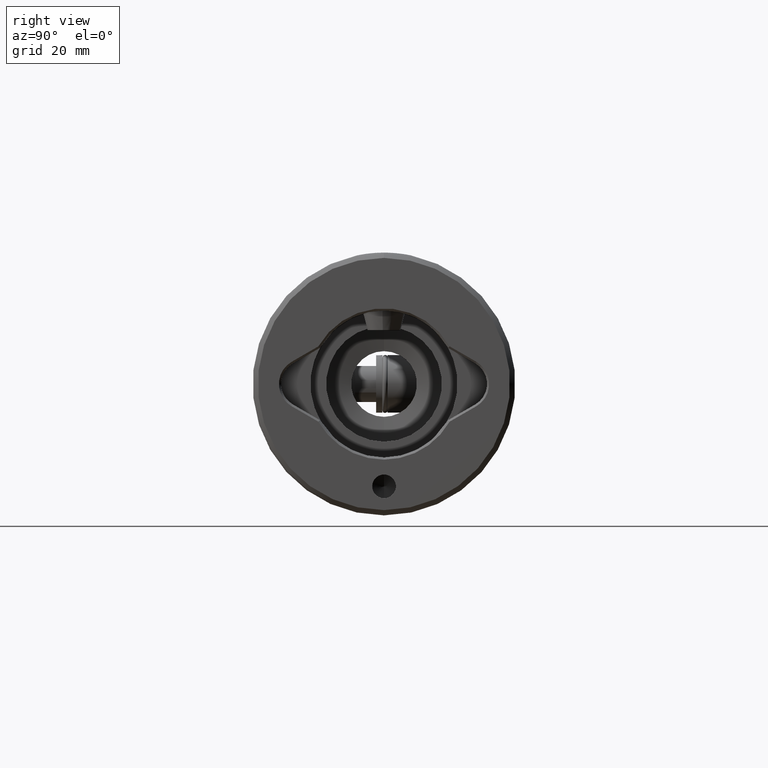
[diagram: clean part render]
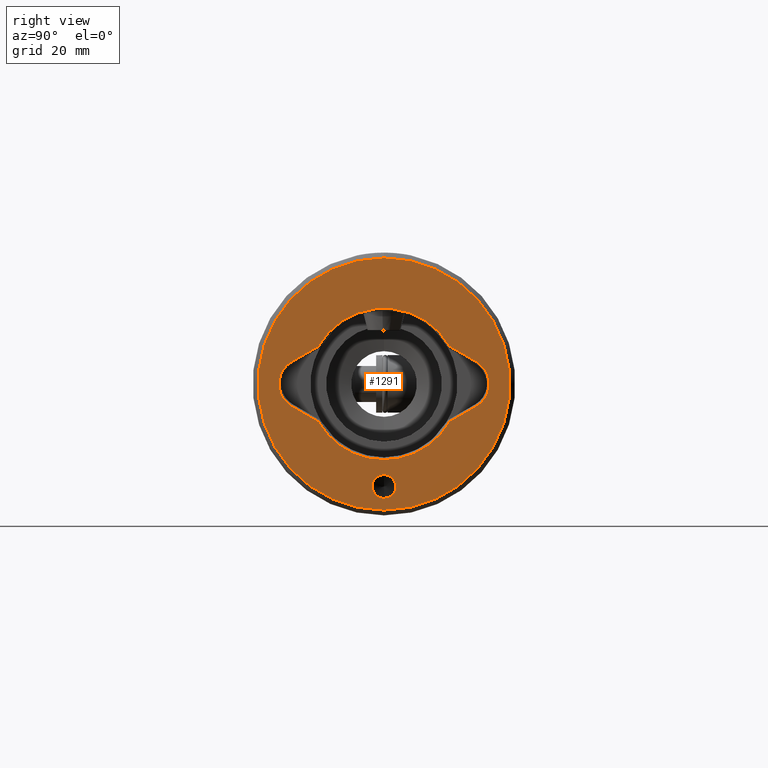
[diagram: same view with one face highlighted and labeled with its STEP entity id]
A machine part, right view. The second image highlights one B-rep face of the part: STEP entity #1291.
In plain terms, the highlighted planar face has unit normal (-1, 0, 0).
Its self-contained STEP definition (entity closure, byte-faithful):
#21 = DIRECTION ( 'NONE',  ( 0.0000000000000000000, 0.0000000000000000000, 1.000000000000000000 ) ) ;
#47 = DIRECTION ( 'NONE',  ( 0.0000000000000000000, 0.0000000000000000000, 1.000000000000000000 ) ) ;
#84 = DIRECTION ( 'NONE',  ( 0.0000000000000000000, 0.0000000000000000000, 1.000000000000000000 ) ) ;
#108 = DIRECTION ( 'NONE',  ( -0.5000000000000004400, 0.8660254037844383700, 0.0000000000000000000 ) ) ;
#204 = DIRECTION ( 'NONE',  ( -1.000000000000000000, 0.0000000000000000000, 0.0000000000000000000 ) ) ;
#256 = VERTEX_POINT ( 'NONE', #823 ) ;
#324 = EDGE_CURVE ( 'NONE', #719, #4816, #4745, .T. ) ;
#333 = DIRECTION ( 'NONE',  ( 0.0000000000000000000, 0.0000000000000000000, -1.000000000000000000 ) ) ;
#337 = DIRECTION ( 'NONE',  ( 1.000000000000000000, 0.0000000000000000000, 0.0000000000000000000 ) ) ;
#340 = DIRECTION ( 'NONE',  ( 1.000000000000000000, 0.0000000000000000000, 0.0000000000000000000 ) ) ;
#350 = CARTESIAN_POINT ( 'NONE',  ( -1.910449006669866200E-015, -15.10000000000000000, 0.0000000000000000000 ) ) ;
#457 = ORIENTED_EDGE ( 'NONE', *, *, #3512, .T. ) ;
#490 = VERTEX_POINT ( 'NONE', #1685 ) ;
#553 = CARTESIAN_POINT ( 'NONE',  ( 7.164092148558562000, -12.49142840859129100, 0.0000000000000000000 ) ) ;
#637 = AXIS2_PLACEMENT_3D ( 'NONE', #4191, #21, #2728 ) ;
#668 = CARTESIAN_POINT ( 'NONE',  ( 0.0000000000000000000, 0.0000000000000000000, 0.0000000000000000000 ) ) ;
#719 = VERTEX_POINT ( 'NONE', #4498 ) ;
#751 = CARTESIAN_POINT ( 'NONE',  ( 0.0000000000000000000, 0.0000000000000000000, 0.0000000000000000000 ) ) ;
#803 = EDGE_LOOP ( 'NONE', ( #457, #841, #1763, #4679, #2871, #2015, #2663, #4658, #2180 ) ) ;
#808 = DIRECTION ( 'NONE',  ( 1.000000000000000000, 0.0000000000000000000, 0.0000000000000000000 ) ) ;
#823 = CARTESIAN_POINT ( 'NONE',  ( -7.164092148558573600, 12.49142840859128600, 0.0000000000000000000 ) ) ;
#838 = CARTESIAN_POINT ( 'NONE',  ( -10.78201627711627200, -6.225000000000017400, 0.0000000000000000000 ) ) ;
#841 = ORIENTED_EDGE ( 'NONE', *, *, #4812, .T. ) ;
#927 = EDGE_CURVE ( 'NONE', #256, #1610, #4797, .T. ) ;
#973 = CIRCLE ( 'NONE', #1817, 23.99999999999997900 ) ;
#1055 = VERTEX_POINT ( 'NONE', #2867 ) ;
#1134 = CARTESIAN_POINT ( 'NONE',  ( 0.0000000000000000000, 0.0000000000000000000, 0.0000000000000000000 ) ) ;
#1153 = CIRCLE ( 'NONE', #4261, 2.249999999999998700 ) ;
#1159 = DIRECTION ( 'NONE',  ( 0.0000000000000000000, 0.0000000000000000000, 1.000000000000000000 ) ) ;
#1178 = CIRCLE ( 'NONE', #4117, 4.900000000000002100 ) ;
#1238 = FACE_BOUND ( 'NONE', #803, .T. ) ;
#1252 = CARTESIAN_POINT ( 'NONE',  ( 10.78201627711626600, 6.225000000000009400, 0.0000000000000000000 ) ) ;
#1291 = ADVANCED_FACE ( 'NONE', ( #3378, #2203, #1238 ), #4882, .F. ) ;
#1299 = EDGE_CURVE ( 'NONE', #3486, #1309, #4734, .T. ) ;
#1309 = VERTEX_POINT ( 'NONE', #3487 ) ;
#1502 = VECTOR ( 'NONE', #3784, 1000.000000000000000 ) ;
#1508 = CARTESIAN_POINT ( 'NONE',  ( 4.243524478543739600, -17.55000000000000800, 0.0000000000000000000 ) ) ;
#1517 = DIRECTION ( 'NONE',  ( 1.000000000000000000, 0.0000000000000000000, 0.0000000000000000000 ) ) ;
#1562 = CIRCLE ( 'NONE', #2124, 4.899999999999997700 ) ;
#1610 = VERTEX_POINT ( 'NONE', #3518 ) ;
#1619 = LINE ( 'NONE', #3728, #1502 ) ;
#1620 = CARTESIAN_POINT ( 'NONE',  ( -1.910449006669866200E-015, 15.10000000000000000, 0.0000000000000000000 ) ) ;
#1685 = CARTESIAN_POINT ( 'NONE',  ( -4.243524478543750300, 17.55000000000000800, 0.0000000000000000000 ) ) ;
#1701 = VERTEX_POINT ( 'NONE', #3099 ) ;
#1763 = ORIENTED_EDGE ( 'NONE', *, *, #1869, .T. ) ;
#1764 = EDGE_CURVE ( 'NONE', #1701, #490, #1178, .T. ) ;
#1817 = AXIS2_PLACEMENT_3D ( 'NONE', #3508, #4643, #340 ) ;
#1833 = VECTOR ( 'NONE', #4619, 999.9999999999998900 ) ;
#1869 = EDGE_CURVE ( 'NONE', #3084, #1701, #3973, .T. ) ;
#1887 = DIRECTION ( 'NONE',  ( -0.5000000000000007800, -0.8660254037844382600, 0.0000000000000000000 ) ) ;
#2015 = ORIENTED_EDGE ( 'NONE', *, *, #927, .T. ) ;
#2062 = LINE ( 'NONE', #4152, #3706 ) ;
#2094 = CARTESIAN_POINT ( 'NONE',  ( -19.50000000000000000, 0.0000000000000000000, -3.061616997867451800E-017 ) ) ;
#2124 = AXIS2_PLACEMENT_3D ( 'NONE', #350, #4568, #4923 ) ;
#2180 = ORIENTED_EDGE ( 'NONE', *, *, #3152, .T. ) ;
#2200 = AXIS2_PLACEMENT_3D ( 'NONE', #1134, #3721, #2670 ) ;
#2203 = FACE_OUTER_BOUND ( 'NONE', #4175, .T. ) ;
#2227 = DIRECTION ( 'NONE',  ( -0.0000000000000000000, -0.0000000000000000000, -1.000000000000000000 ) ) ;
#2271 = ORIENTED_EDGE ( 'NONE', *, *, #4121, .F. ) ;
#2468 = AXIS2_PLACEMENT_3D ( 'NONE', #668, #2227, #337 ) ;
#2542 = ORIENTED_EDGE ( 'NONE', *, *, #2950, .F. ) ;
#2544 = CIRCLE ( 'NONE', #2701, 14.40000000000000200 ) ;
#2594 = VERTEX_POINT ( 'NONE', #4532 ) ;
#2646 = EDGE_CURVE ( 'NONE', #1610, #719, #4362, .T. ) ;
#2663 = ORIENTED_EDGE ( 'NONE', *, *, #2646, .T. ) ;
#2670 = DIRECTION ( 'NONE',  ( 1.000000000000000000, 0.0000000000000000000, 0.0000000000000000000 ) ) ;
#2677 = VECTOR ( 'NONE', #108, 1000.000000000000100 ) ;
#2701 = AXIS2_PLACEMENT_3D ( 'NONE', #751, #1159, #1517 ) ;
#2728 = DIRECTION ( 'NONE',  ( 1.000000000000000000, 0.0000000000000000000, 0.0000000000000000000 ) ) ;
#2867 = CARTESIAN_POINT ( 'NONE',  ( -17.25000000000000000, 2.755455298081540800E-016, -3.061616997867451800E-017 ) ) ;
#2871 = ORIENTED_EDGE ( 'NONE', *, *, #3176, .T. ) ;
#2950 = EDGE_CURVE ( 'NONE', #2594, #1055, #3654, .T. ) ;
#2991 = CARTESIAN_POINT ( 'NONE',  ( -19.50000000000000000, 0.0000000000000000000, -3.061616997867451800E-017 ) ) ;
#3013 = DIRECTION ( 'NONE',  ( -1.000000000000000000, 0.0000000000000000000, 0.0000000000000000000 ) ) ;
#3084 = VERTEX_POINT ( 'NONE', #4809 ) ;
#3099 = CARTESIAN_POINT ( 'NONE',  ( 4.243524478543747600, 17.55000000000000800, 0.0000000000000000000 ) ) ;
#3152 = EDGE_CURVE ( 'NONE', #4816, #3227, #1562, .T. ) ;
#3176 = EDGE_CURVE ( 'NONE', #490, #256, #2062, .T. ) ;
#3190 = EDGE_LOOP ( 'NONE', ( #2542, #2271 ) ) ;
#3227 = VERTEX_POINT ( 'NONE', #1508 ) ;
#3378 = FACE_BOUND ( 'NONE', #3190, .T. ) ;
#3447 = EDGE_CURVE ( 'NONE', #1309, #3486, #973, .T. ) ;
#3486 = VERTEX_POINT ( 'NONE', #4337 ) ;
#3487 = CARTESIAN_POINT ( 'NONE',  ( -23.99999999999997900, 2.988138189919540500E-015, 0.0000000000000000000 ) ) ;
#3508 = CARTESIAN_POINT ( 'NONE',  ( 0.0000000000000000000, 0.0000000000000000000, 0.0000000000000000000 ) ) ;
#3512 = EDGE_CURVE ( 'NONE', #3227, #4826, #1619, .T. ) ;
#3518 = CARTESIAN_POINT ( 'NONE',  ( -14.40000000000000200, 0.0000000000000000000, 0.0000000000000000000 ) ) ;
#3654 = CIRCLE ( 'NONE', #4478, 2.249999999999998700 ) ;
#3664 = ORIENTED_EDGE ( 'NONE', *, *, #3447, .T. ) ;
#3706 = VECTOR ( 'NONE', #1887, 999.9999999999998900 ) ;
#3721 = DIRECTION ( 'NONE',  ( 0.0000000000000000000, 0.0000000000000000000, 1.000000000000000000 ) ) ;
#3728 = CARTESIAN_POINT ( 'NONE',  ( 10.78201627711626300, -6.225000000000017400, 0.0000000000000000000 ) ) ;
#3730 = CARTESIAN_POINT ( 'NONE',  ( -4.243524478543746700, -17.55000000000000400, 0.0000000000000000000 ) ) ;
#3784 = DIRECTION ( 'NONE',  ( 0.5000000000000010000, 0.8660254037844380400, 0.0000000000000000000 ) ) ;
#3915 = DIRECTION ( 'NONE',  ( 1.000000000000000000, 0.0000000000000000000, 0.0000000000000000000 ) ) ;
#3973 = LINE ( 'NONE', #1252, #2677 ) ;
#4117 = AXIS2_PLACEMENT_3D ( 'NONE', #1620, #47, #808 ) ;
#4121 = EDGE_CURVE ( 'NONE', #1055, #2594, #1153, .T. ) ;
#4152 = CARTESIAN_POINT ( 'NONE',  ( -10.78201627711627000, 6.225000000000016500, 0.0000000000000000000 ) ) ;
#4175 = EDGE_LOOP ( 'NONE', ( #4246, #3664 ) ) ;
#4191 = CARTESIAN_POINT ( 'NONE',  ( 0.0000000000000000000, 0.0000000000000000000, 0.0000000000000000000 ) ) ;
#4246 = ORIENTED_EDGE ( 'NONE', *, *, #1299, .T. ) ;
#4261 = AXIS2_PLACEMENT_3D ( 'NONE', #2991, #333, #3013 ) ;
#4337 = CARTESIAN_POINT ( 'NONE',  ( 23.99999999999997900, 0.0000000000000000000, 0.0000000000000000000 ) ) ;
#4346 = DIRECTION ( 'NONE',  ( 0.0000000000000000000, 0.0000000000000000000, -1.000000000000000000 ) ) ;
#4362 = CIRCLE ( 'NONE', #637, 14.40000000000000200 ) ;
#4455 = AXIS2_PLACEMENT_3D ( 'NONE', #4627, #84, #3915 ) ;
#4478 = AXIS2_PLACEMENT_3D ( 'NONE', #2094, #4346, #204 ) ;
#4498 = CARTESIAN_POINT ( 'NONE',  ( -7.164092148558575300, -12.49142840859128400, 0.0000000000000000000 ) ) ;
#4532 = CARTESIAN_POINT ( 'NONE',  ( -21.75000000000000000, 0.0000000000000000000, -3.061616997867451800E-017 ) ) ;
#4568 = DIRECTION ( 'NONE',  ( 0.0000000000000000000, 0.0000000000000000000, 1.000000000000000000 ) ) ;
#4619 = DIRECTION ( 'NONE',  ( 0.5000000000000007800, -0.8660254037844382600, 0.0000000000000000000 ) ) ;
#4627 = CARTESIAN_POINT ( 'NONE',  ( 0.0000000000000000000, 0.0000000000000000000, 0.0000000000000000000 ) ) ;
#4643 = DIRECTION ( 'NONE',  ( -0.0000000000000000000, -0.0000000000000000000, -1.000000000000000000 ) ) ;
#4658 = ORIENTED_EDGE ( 'NONE', *, *, #324, .T. ) ;
#4679 = ORIENTED_EDGE ( 'NONE', *, *, #1764, .T. ) ;
#4734 = CIRCLE ( 'NONE', #2468, 23.99999999999997900 ) ;
#4745 = LINE ( 'NONE', #838, #1833 ) ;
#4797 = CIRCLE ( 'NONE', #4455, 14.40000000000000200 ) ;
#4809 = CARTESIAN_POINT ( 'NONE',  ( 7.164092148558565600, 12.49142840859129100, 0.0000000000000000000 ) ) ;
#4812 = EDGE_CURVE ( 'NONE', #4826, #3084, #2544, .T. ) ;
#4816 = VERTEX_POINT ( 'NONE', #3730 ) ;
#4826 = VERTEX_POINT ( 'NONE', #553 ) ;
#4882 = PLANE ( 'NONE',  #2200 ) ;
#4923 = DIRECTION ( 'NONE',  ( 1.000000000000000000, 0.0000000000000000000, 0.0000000000000000000 ) ) ;